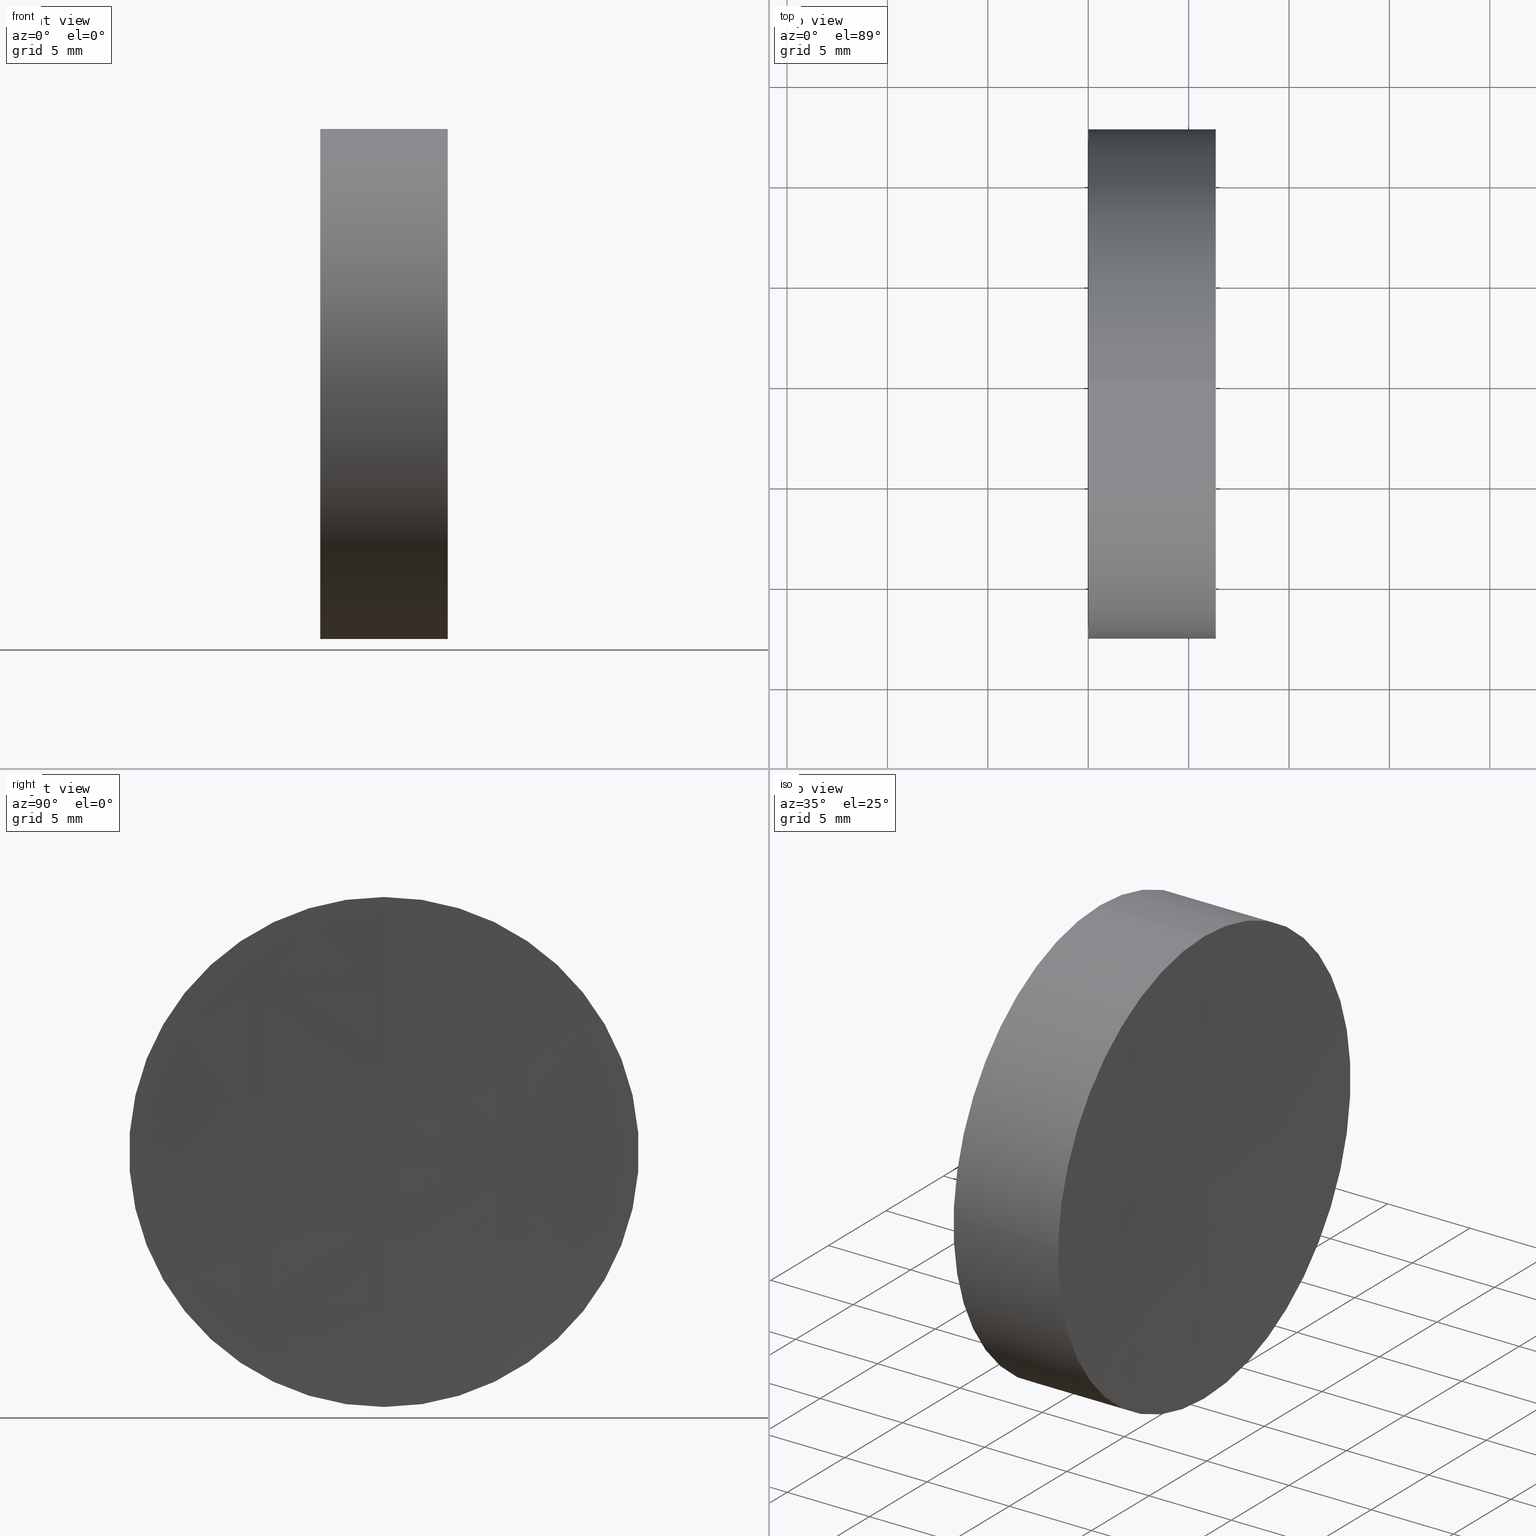
[diagram: canonical four-view strip — front | top / right | iso, engineering-drawing reading convention]
A machine part, canonical four-view strip (front | top / right | iso — engineering-drawing reading convention). The complete STEP part file that produces these views, byte-faithful:
ISO-10303-21;
HEADER;
FILE_DESCRIPTION (( 'STEP AP214' ),
    '1' );
FILE_NAME ('432518.STEP',
    '2019-08-27T01:31:33',
    ( 'user' ),
    ( '΢���й�' ),
    'SwSTEP 2.0',
    'SolidWorks 2016',
    '' );
FILE_SCHEMA (( 'AUTOMOTIVE_DESIGN' ));
ENDSEC;

DATA;
#1 = EDGE_LOOP ( 'NONE', ( #88, #76, #69, #152 ) ) ;
#2 = ADVANCED_FACE ( 'NONE', ( #85 ), #64, .F. ) ;
#3 = CIRCLE ( 'NONE', #120, 12.69999999999999900 ) ;
#4 = DIRECTION ( 'NONE',  ( 0.0000000000000000000, 0.0000000000000000000, 1.000000000000000000 ) ) ;
#5 = CARTESIAN_POINT ( 'NONE',  ( 506.1900000000000500, 0.0000000000000000000, 0.0000000000000000000 ) ) ;
#6 = STYLED_ITEM ( 'NONE', ( #51 ), #15 ) ;
#7 = ORIENTED_EDGE ( 'NONE', *, *, #56, .T. ) ;
#8 =( NAMED_UNIT ( * ) PLANE_ANGLE_UNIT ( ) SI_UNIT ( $, .RADIAN. ) );
#9 =( NAMED_UNIT ( * ) PLANE_ANGLE_UNIT ( ) SI_UNIT ( $, .RADIAN. ) );
#10 = PRODUCT_RELATED_PRODUCT_CATEGORY ( 'part', '', ( #136 ) ) ;
#11 = VERTEX_POINT ( 'NONE', #92 ) ;
#12 = STYLED_ITEM ( 'NONE', ( #87 ), #50 ) ;
#13 = EDGE_CURVE ( 'NONE', #135, #11, #155, .T. ) ;
#14 = ORIENTED_EDGE ( 'NONE', *, *, #25, .F. ) ;
#15 = MANIFOLD_SOLID_BREP ( '��ת1', #126 ) ;
#16 = ADVANCED_FACE ( 'NONE', ( #121 ), #82, .T. ) ;
#17 = DIRECTION ( 'NONE',  ( 0.0000000000000000000, 1.000000000000000000, 0.0000000000000000000 ) ) ;
#18 = CARTESIAN_POINT ( 'NONE',  ( 0.0000000000000000000, 0.0000000000000000000, 0.0000000000000000000 ) ) ;
#19 = CARTESIAN_POINT ( 'NONE',  ( 6.351316022859265300, 0.0000000000000000000, 0.0000000000000000000 ) ) ;
#20 = PLANE ( 'NONE',  #124 ) ;
#21 = SURFACE_STYLE_USAGE ( .BOTH. , #115 ) ;
#22 = PRESENTATION_LAYER_ASSIGNMENT (  '', '', ( #12 ) ) ;
#23 = COLOUR_RGB ( '',1.000000000000000000, 1.000000000000000000, 1.000000000000000000 ) ;
#24 = FILL_AREA_STYLE ('',( #26 ) ) ;
#25 = EDGE_CURVE ( 'NONE', #49, #27, #86, .T. ) ;
#26 = FILL_AREA_STYLE_COLOUR ( '', #23 ) ;
#27 = VERTEX_POINT ( 'NONE', #103 ) ;
#28 = MECHANICAL_DESIGN_GEOMETRIC_PRESENTATION_REPRESENTATION (  '', ( #12 ), #37 ) ;
#29 = EDGE_CURVE ( 'NONE', #143, #49, #89, .T. ) ;
#30 = DIRECTION ( 'NONE',  ( 1.000000000000000000, 0.0000000000000000000, 0.0000000000000000000 ) ) ;
#31 = CARTESIAN_POINT ( 'NONE',  ( 0.0000000000000000000, 0.0000000000000000000, 0.0000000000000000000 ) ) ;
#32 = FILL_AREA_STYLE ('',( #40 ) ) ;
#33 = SURFACE_STYLE_USAGE ( .BOTH. , #107 ) ;
#34 = VECTOR ( 'NONE', #77, 1000.000000000000000 ) ;
#35 = DIRECTION ( 'NONE',  ( 0.0000000000000000000, -1.224646799147353200E-016, 1.000000000000000000 ) ) ;
#36 = EDGE_LOOP ( 'NONE', ( #104, #39, #14 ) ) ;
#37 =( GEOMETRIC_REPRESENTATION_CONTEXT ( 3 ) GLOBAL_UNCERTAINTY_ASSIGNED_CONTEXT ( ( #78 ) ) GLOBAL_UNIT_ASSIGNED_CONTEXT ( ( #95, #9, #83 ) ) REPRESENTATION_CONTEXT ( 'NONE', 'WORKASPACE' ) );
#38 = AXIS2_PLACEMENT_3D ( 'NONE', #145, #43, #129 ) ;
#39 = ORIENTED_EDGE ( 'NONE', *, *, #151, .T. ) ;
#40 = FILL_AREA_STYLE_COLOUR ( '', #149 ) ;
#41 = ORIENTED_EDGE ( 'NONE', *, *, #160, .F. ) ;
#42 = CARTESIAN_POINT ( 'NONE',  ( 506.1900000000000500, 0.0000000000000000000, 0.0000000000000000000 ) ) ;
#43 = DIRECTION ( 'NONE',  ( -1.000000000000000000, -0.0000000000000000000, -0.0000000000000000000 ) ) ;
#44 = CYLINDRICAL_SURFACE ( 'NONE', #128, 12.69999999999997100 ) ;
#45 = AXIS2_PLACEMENT_3D ( 'NONE', #70, #59, #58 ) ;
#46 = APPLICATION_PROTOCOL_DEFINITION ( 'draft international standard', 'automotive_design', 1998, #130 ) ;
#47 = APPLICATION_PROTOCOL_DEFINITION ( 'draft international standard', 'automotive_design', 1998, #117 ) ;
#48 = CARTESIAN_POINT ( 'NONE',  ( 506.1900000000000500, 0.0000000000000000000, 0.0000000000000000000 ) ) ;
#49 = VERTEX_POINT ( 'NONE', #80 ) ;
#50 = ADVANCED_BREP_SHAPE_REPRESENTATION ( '432518', ( #15, #63 ), #158 ) ;
#51 = PRESENTATION_STYLE_ASSIGNMENT (( #21 ) ) ;
#52 = FACE_OUTER_BOUND ( 'NONE', #108, .T. ) ;
#53 = ADVANCED_FACE ( 'NONE', ( #52 ), #20, .F. ) ;
#54 = DIRECTION ( 'NONE',  ( -1.000000000000000000, -0.0000000000000000000, -0.0000000000000000000 ) ) ;
#55 = CARTESIAN_POINT ( 'NONE',  ( 0.0000000000000000000, 1.555301434917138400E-015, -12.69999999999999900 ) ) ;
#56 = EDGE_CURVE ( 'NONE', #143, #135, #109, .T. ) ;
#57 = SURFACE_STYLE_FILL_AREA ( #32 ) ;
#58 = DIRECTION ( 'NONE',  ( 0.0000000000000000000, 0.0000000000000000000, 1.000000000000000000 ) ) ;
#59 = DIRECTION ( 'NONE',  ( -1.000000000000000000, -0.0000000000000000000, -0.0000000000000000000 ) ) ;
#60 = PRODUCT_DEFINITION_SHAPE ( 'NONE', 'NONE',  #71 ) ;
#61 = PRODUCT_CONTEXT ( 'NONE', #117, 'mechanical' ) ;
#62 = AXIS2_PLACEMENT_3D ( 'NONE', #42, #157, #105 ) ;
#63 = AXIS2_PLACEMENT_3D ( 'NONE', #153, #72, #146 ) ;
#64 = SPHERICAL_SURFACE ( 'NONE', #134, 500.0000000000000000 ) ;
#65 = ADVANCED_FACE ( 'NONE', ( #116 ), #97, .F. ) ;
#66 = CARTESIAN_POINT ( 'NONE',  ( 0.0000000000000000000, 0.0000000000000000000, 0.0000000000000000000 ) ) ;
#67 = CARTESIAN_POINT ( 'NONE',  ( 6.351316022859265300, 0.0000000000000000000, 0.0000000000000000000 ) ) ;
#68 = DIRECTION ( 'NONE',  ( 0.0000000000000000000, 0.0000000000000000000, 1.000000000000000000 ) ) ;
#69 = ORIENTED_EDGE ( 'NONE', *, *, #160, .T. ) ;
#70 = CARTESIAN_POINT ( 'NONE',  ( 0.0000000000000000000, 0.0000000000000000000, 0.0000000000000000000 ) ) ;
#71 = PRODUCT_DEFINITION ( 'δ֪', '', #142, #165 ) ;
#72 = DIRECTION ( 'NONE',  ( 0.0000000000000000000, 0.0000000000000000000, 1.000000000000000000 ) ) ;
#73 =( NAMED_UNIT ( * ) SI_UNIT ( $, .STERADIAN. ) SOLID_ANGLE_UNIT ( ) );
#74 = UNCERTAINTY_MEASURE_WITH_UNIT (LENGTH_MEASURE( 1.000000000000000100E-005 ), #106, 'distance_accuracy_value', 'NONE');
#75 = ORIENTED_EDGE ( 'NONE', *, *, #131, .T. ) ;
#76 = ORIENTED_EDGE ( 'NONE', *, *, #29, .T. ) ;
#77 = DIRECTION ( 'NONE',  ( -1.000000000000000000, -0.0000000000000000000, -0.0000000000000000000 ) ) ;
#78 = UNCERTAINTY_MEASURE_WITH_UNIT (LENGTH_MEASURE( 1.000000000000000100E-005 ), #95, 'distance_accuracy_value', 'NONE');
#79 = ORIENTED_EDGE ( 'NONE', *, *, #151, .F. ) ;
#80 = CARTESIAN_POINT ( 'NONE',  ( 6.351316022859265300, 0.0000000000000000000, 12.70000000000013400 ) ) ;
#81 = DIRECTION ( 'NONE',  ( 0.0000000000000000000, 1.000000000000000000, 0.0000000000000000000 ) ) ;
#82 = CYLINDRICAL_SURFACE ( 'NONE', #45, 12.69999999999997100 ) ;
#83 =( NAMED_UNIT ( * ) SI_UNIT ( $, .STERADIAN. ) SOLID_ANGLE_UNIT ( ) );
#84 =( LENGTH_UNIT ( ) NAMED_UNIT ( * ) SI_UNIT ( .MILLI., .METRE. ) );
#85 = FACE_OUTER_BOUND ( 'NONE', #36, .T. ) ;
#86 = CIRCLE ( 'NONE', #62, 500.0000000000000000 ) ;
#87 = PRESENTATION_STYLE_ASSIGNMENT (( #33 ) ) ;
#88 = ORIENTED_EDGE ( 'NONE', *, *, #56, .F. ) ;
#89 = CIRCLE ( 'NONE', #122, 12.69999999999994200 ) ;
#90 = DIRECTION ( 'NONE',  ( -1.000000000000000000, -0.0000000000000000000, -0.0000000000000000000 ) ) ;
#91 = DIRECTION ( 'NONE',  ( -1.000000000000000000, -0.0000000000000000000, -0.0000000000000000000 ) ) ;
#92 = CARTESIAN_POINT ( 'NONE',  ( 0.0000000000000000000, 0.0000000000000000000, 12.69999999999999900 ) ) ;
#93 = DIRECTION ( 'NONE',  ( 0.0000000000000000000, 0.0000000000000000000, 1.000000000000000000 ) ) ;
#94 =( NAMED_UNIT ( * ) SI_UNIT ( $, .STERADIAN. ) SOLID_ANGLE_UNIT ( ) );
#95 =( LENGTH_UNIT ( ) NAMED_UNIT ( * ) SI_UNIT ( .MILLI., .METRE. ) );
#96 = ORIENTED_EDGE ( 'NONE', *, *, #13, .T. ) ;
#97 = SPHERICAL_SURFACE ( 'NONE', #111, 500.0000000000000000 ) ;
#98 = ORIENTED_EDGE ( 'NONE', *, *, #123, .T. ) ;
#99 = DIRECTION ( 'NONE',  ( 0.0000000000000000000, 0.0000000000000000000, -1.000000000000000000 ) ) ;
#100 = CIRCLE ( 'NONE', #139, 12.69999999999994200 ) ;
#101 = CARTESIAN_POINT ( 'NONE',  ( 6.351316022859265300, 1.555301434917155200E-015, -12.70000000000013400 ) ) ;
#102 = DIRECTION ( 'NONE',  ( -1.000000000000000000, -0.0000000000000000000, -0.0000000000000000000 ) ) ;
#103 = CARTESIAN_POINT ( 'NONE',  ( 6.190000000000028800, 0.0000000000000000000, 3.061616997868383100E-014 ) ) ;
#104 = ORIENTED_EDGE ( 'NONE', *, *, #29, .F. ) ;
#105 = DIRECTION ( 'NONE',  ( 0.0000000000000000000, 0.0000000000000000000, -1.000000000000000000 ) ) ;
#106 =( LENGTH_UNIT ( ) NAMED_UNIT ( * ) SI_UNIT ( .MILLI., .METRE. ) );
#107 = SURFACE_SIDE_STYLE ('',( #159 ) ) ;
#108 = EDGE_LOOP ( 'NONE', ( #98, #96 ) ) ;
#109 = LINE ( 'NONE', #141, #34 ) ;
#110 = EDGE_LOOP ( 'NONE', ( #75, #7, #113, #41 ) ) ;
#111 = AXIS2_PLACEMENT_3D ( 'NONE', #5, #81, #154 ) ;
#112 = ADVANCED_FACE ( 'NONE', ( #132 ), #44, .T. ) ;
#113 = ORIENTED_EDGE ( 'NONE', *, *, #123, .F. ) ;
#114 = PRESENTATION_LAYER_ASSIGNMENT (  '', '', ( #6 ) ) ;
#115 = SURFACE_SIDE_STYLE ('',( #57 ) ) ;
#116 = FACE_OUTER_BOUND ( 'NONE', #118, .T. ) ;
#117 = APPLICATION_CONTEXT ( 'automotive_design' ) ;
#118 = EDGE_LOOP ( 'NONE', ( #79, #138, #164 ) ) ;
#119 = DIRECTION ( 'NONE',  ( -0.0000000000000000000, 1.000000000000000000, 1.224646799147353200E-016 ) ) ;
#120 = AXIS2_PLACEMENT_3D ( 'NONE', #18, #91, #4 ) ;
#121 = FACE_OUTER_BOUND ( 'NONE', #1, .T. ) ;
#122 = AXIS2_PLACEMENT_3D ( 'NONE', #19, #102, #144 ) ;
#123 = EDGE_CURVE ( 'NONE', #11, #135, #3, .T. ) ;
#124 = AXIS2_PLACEMENT_3D ( 'NONE', #31, #30, #99 ) ;
#125 = MECHANICAL_DESIGN_GEOMETRIC_PRESENTATION_REPRESENTATION (  '', ( #6 ), #162 ) ;
#126 = CLOSED_SHELL ( 'NONE', ( #112, #2, #53, #65, #16 ) ) ;
#127 = VECTOR ( 'NONE', #133, 1000.000000000000000 ) ;
#128 = AXIS2_PLACEMENT_3D ( 'NONE', #66, #54, #68 ) ;
#129 = DIRECTION ( 'NONE',  ( 0.0000000000000000000, 0.0000000000000000000, 1.000000000000000000 ) ) ;
#130 = APPLICATION_CONTEXT ( 'automotive_design' ) ;
#131 = EDGE_CURVE ( 'NONE', #49, #143, #100, .T. ) ;
#132 = FACE_OUTER_BOUND ( 'NONE', #110, .T. ) ;
#133 = DIRECTION ( 'NONE',  ( -1.000000000000000000, -0.0000000000000000000, -0.0000000000000000000 ) ) ;
#134 = AXIS2_PLACEMENT_3D ( 'NONE', #140, #17, #93 ) ;
#135 = VERTEX_POINT ( 'NONE', #55 ) ;
#136 = PRODUCT ( '432518', '432518', '', ( #61 ) ) ;
#137 = CIRCLE ( 'NONE', #150, 500.0000000000000000 ) ;
#138 = ORIENTED_EDGE ( 'NONE', *, *, #131, .F. ) ;
#139 = AXIS2_PLACEMENT_3D ( 'NONE', #67, #90, #147 ) ;
#140 = CARTESIAN_POINT ( 'NONE',  ( 506.1900000000000500, 0.0000000000000000000, 0.0000000000000000000 ) ) ;
#141 = CARTESIAN_POINT ( 'NONE',  ( 0.0000000000000000000, 1.555301434917135100E-015, -12.69999999999997100 ) ) ;
#142 = PRODUCT_DEFINITION_FORMATION_WITH_SPECIFIED_SOURCE ( '�κ�', '', #136, .NOT_KNOWN. ) ;
#143 = VERTEX_POINT ( 'NONE', #101 ) ;
#144 = DIRECTION ( 'NONE',  ( 0.0000000000000000000, 0.0000000000000000000, 1.000000000000000000 ) ) ;
#145 = CARTESIAN_POINT ( 'NONE',  ( 0.0000000000000000000, 0.0000000000000000000, 0.0000000000000000000 ) ) ;
#146 = DIRECTION ( 'NONE',  ( 1.000000000000000000, 0.0000000000000000000, 0.0000000000000000000 ) ) ;
#147 = DIRECTION ( 'NONE',  ( 0.0000000000000000000, 0.0000000000000000000, 1.000000000000000000 ) ) ;
#148 = CARTESIAN_POINT ( 'NONE',  ( 0.0000000000000000000, 0.0000000000000000000, 12.69999999999997100 ) ) ;
#149 = COLOUR_RGB ( '',1.000000000000000000, 1.000000000000000000, 1.000000000000000000 ) ;
#150 = AXIS2_PLACEMENT_3D ( 'NONE', #48, #119, #35 ) ;
#151 = EDGE_CURVE ( 'NONE', #143, #27, #137, .T. ) ;
#152 = ORIENTED_EDGE ( 'NONE', *, *, #13, .F. ) ;
#153 = CARTESIAN_POINT ( 'NONE',  ( 0.0000000000000000000, 0.0000000000000000000, 0.0000000000000000000 ) ) ;
#154 = DIRECTION ( 'NONE',  ( 0.0000000000000000000, 0.0000000000000000000, 1.000000000000000000 ) ) ;
#155 = CIRCLE ( 'NONE', #38, 12.69999999999999900 ) ;
#156 = UNCERTAINTY_MEASURE_WITH_UNIT (LENGTH_MEASURE( 1.000000000000000100E-005 ), #84, 'distance_accuracy_value', 'NONE');
#157 = DIRECTION ( 'NONE',  ( 0.0000000000000000000, -1.000000000000000000, 0.0000000000000000000 ) ) ;
#158 =( GEOMETRIC_REPRESENTATION_CONTEXT ( 3 ) GLOBAL_UNCERTAINTY_ASSIGNED_CONTEXT ( ( #156 ) ) GLOBAL_UNIT_ASSIGNED_CONTEXT ( ( #84, #161, #73 ) ) REPRESENTATION_CONTEXT ( 'NONE', 'WORKASPACE' ) );
#159 = SURFACE_STYLE_FILL_AREA ( #24 ) ;
#160 = EDGE_CURVE ( 'NONE', #49, #11, #166, .T. ) ;
#161 =( NAMED_UNIT ( * ) PLANE_ANGLE_UNIT ( ) SI_UNIT ( $, .RADIAN. ) );
#162 =( GEOMETRIC_REPRESENTATION_CONTEXT ( 3 ) GLOBAL_UNCERTAINTY_ASSIGNED_CONTEXT ( ( #74 ) ) GLOBAL_UNIT_ASSIGNED_CONTEXT ( ( #106, #8, #94 ) ) REPRESENTATION_CONTEXT ( 'NONE', 'WORKASPACE' ) );
#163 = SHAPE_DEFINITION_REPRESENTATION ( #60, #50 ) ;
#164 = ORIENTED_EDGE ( 'NONE', *, *, #25, .T. ) ;
#165 = PRODUCT_DEFINITION_CONTEXT ( 'detailed design', #130, 'design' ) ;
#166 = LINE ( 'NONE', #148, #127 ) ;
ENDSEC;
END-ISO-10303-21;
